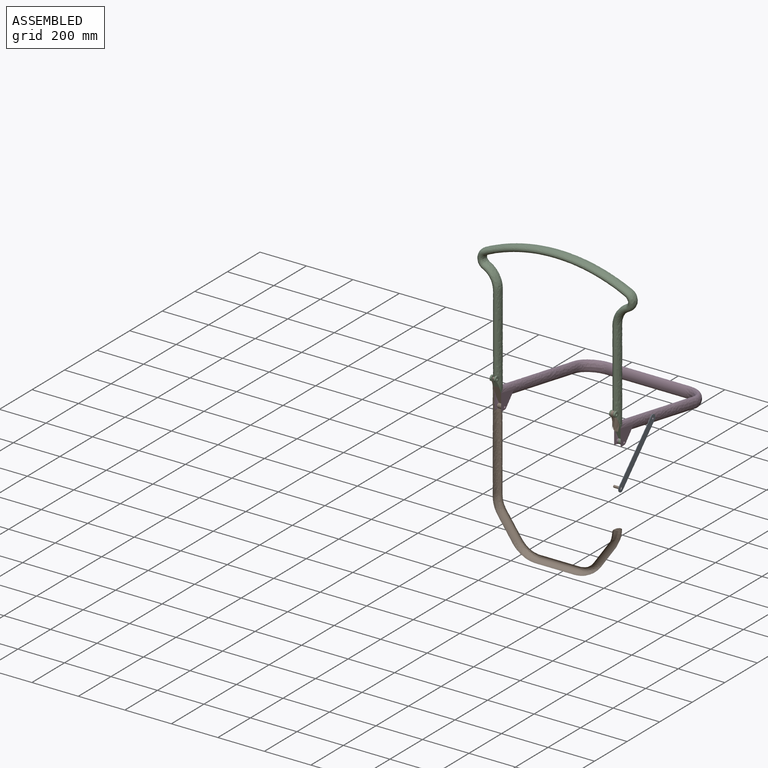
[diagram: assembled view]
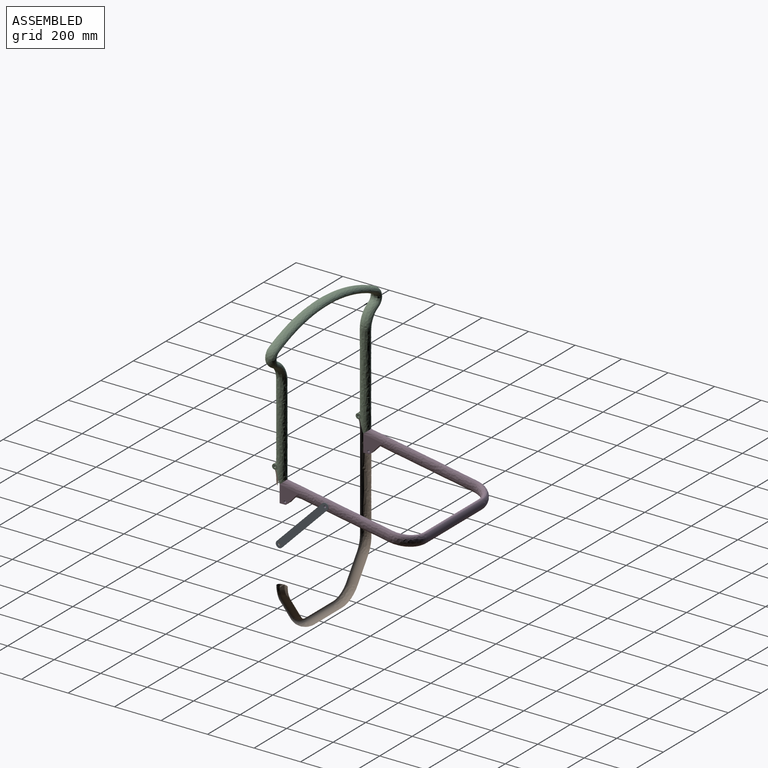
[diagram: assembled view, second angle]
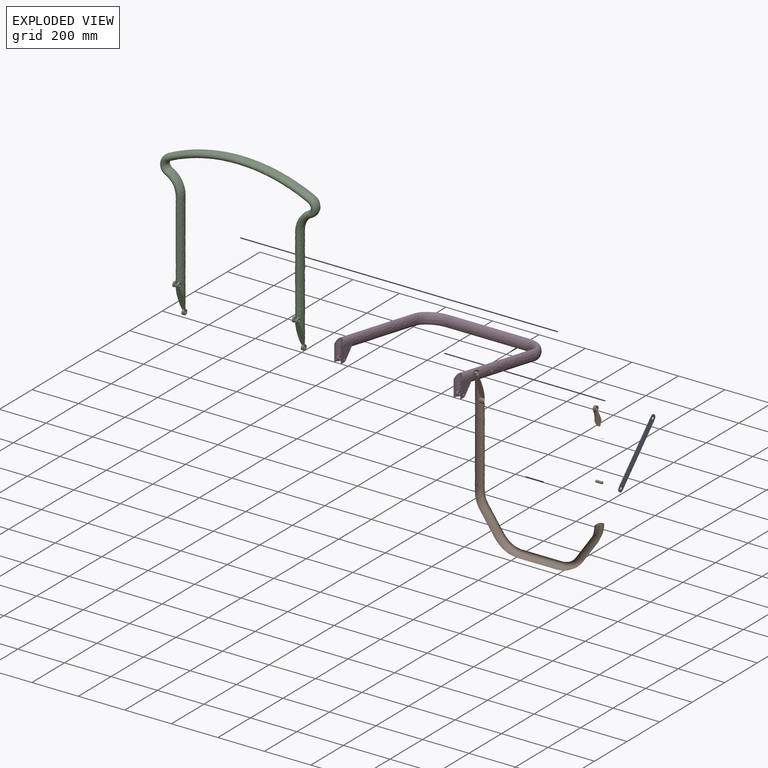
[diagram: exploded view]
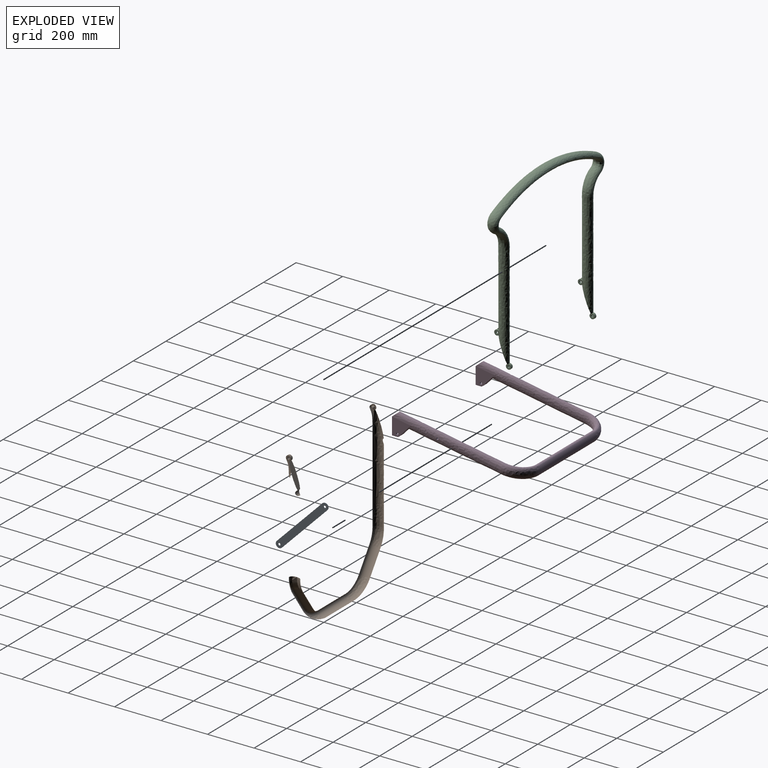
[diagram: exploded view, second angle]
ASSEMBLY  parts=4 mates=4
PART A: 8 faces, bbox 2x225.5x228.2 mm
  f0: cylinder r=15mm len=25.68mm, axis (-1,0,0), area 94.2mm2, adj f1,f5,f6,f7
  f1: plane 198.22x195.45mm, normal (0,-0.71,0.7), area 556.8mm2, adj f0,f2,f6,f7
  f2: cylinder r=15mm len=25.68mm, axis (-1,0,0), area 94.2mm2, adj f1,f5,f6,f7
  f3: cylinder r=5mm len=10mm, axis (-1,0,0), area 62.8mm2, adj f6,f7
  f4: cylinder r=5mm len=10mm, axis (-1,0,0), area 62.8mm2, adj f6,f7
  f5: plane 198.22x195.45mm, normal (0,0.71,-0.7), area 556.8mm2, adj f0,f2,f6,f7
  f6: plane 228.22x225.45mm, normal (1,0,0), area 8901.1mm2, adj f0,f1,f2,f3,f4,f5
  f7: plane 228.22x225.45mm, normal (-1,0,0), area 8901.1mm2, adj f0,f1,f2,f3,f4,f5
PART B: 33 faces, bbox 707.4x137.2x1113.4 mm
  f0: bspline ~44.86x27.56mm, area 0mm2, adj f1,f2
  f1: bspline ~79.58x70.95mm, area 7874.3mm2, adj f0,f2,f3
  f2: cylinder r=0.5mm len=27.99mm, axis (-1,0,0), area 87.9mm2, adj f0,f1
  f3: bspline ~123.57x109.85mm, area 12991.5mm2, adj f1,f4
  f4: bspline ~113.82x91.39mm, area 12397.9mm2, adj f3,f5
  f5: bspline ~82.08x56mm, area 9553.2mm2, adj f4,f6
  f6: bspline ~82.08x56mm, area 9553.2mm2, adj f5,f7
  f7: bspline ~113.82x91.39mm, area 12397.9mm2, adj f6,f8
  f8: bspline ~123.57x109.85mm, area 12991.5mm2, adj f7,f9
  f9: bspline ~79.58x70.95mm, area 7874.3mm2, adj f8,f10
  f10: bspline ~802.07x56mm, area 45290.1mm2, adj f9,f11,f12,f13,f14,f15
  f11: plane 113.47x44.55mm, normal (0,0.94,0.34), area 2676.6mm2, adj f10,f12,f14,f15,f16,f17,f18,f19
  f12: cylinder r=6mm len=57.05mm, axis (0,0,1), area 189.8mm2, adj f10,f11,f13,f16,f17
  f13: bspline ~109.17x59.45mm, area 669.3mm2, adj f10,f12,f14,f17,f18,f19
  f14: cylinder r=6mm len=57.05mm, axis (0,0,1), area 189.8mm2, adj f10,f11,f13,f16,f19
  f15: cylinder r=11.25mm len=24.25mm, axis (1,0,0), area 639.5mm2, adj f10,f11
  f16: cylinder r=5mm len=11.81mm, axis (-1,0,0), area 317.1mm2, adj f11,f12,f14,f17,f19
  f17: plane 37.97x23.99mm, normal (-1,0,0), area 331.2mm2, adj f11,f12,f13,f16,f18
  f18: cylinder r=11.26mm len=22.51mm, axis (-1,0,0), area 553.1mm2, adj f11,f13,f17,f19
  f19: plane 37.97x23.98mm, normal (1,0,0), area 331.2mm2, adj f11,f13,f14,f16,f18
  f20: bspline ~802.07x45mm, area 78.7mm2, adj f21
  f21: cylinder r=5mm len=28mm, axis (-1,0,0), area 879.6mm2, adj f20,f22
  f22: bspline ~802.07x45mm, area 78.7mm2, adj f21
  f23: bspline ~126.75x44.87mm, area 1607.5mm2, adj f24,f25,f26,f27,f28
  f24: cylinder r=11.25mm len=24.25mm, axis (-1,0,0), area 640.1mm2, adj f23,f25
  f25: plane 189.29x120.36mm, normal (0,0.94,0.34), area 2676.6mm2, adj f23,f24,f26,f28,f29,f30,f31,f32
  f26: cylinder r=6mm len=57.05mm, axis (0,0,1), area 189.8mm2, adj f23,f25,f27,f29,f32
  f27: bspline ~109.17x59.44mm, area 669.3mm2, adj f23,f26,f28,f30,f31,f32
  f28: cylinder r=6mm len=57.05mm, axis (0,0,1), area 189.8mm2, adj f23,f25,f27,f29,f30
  f29: cylinder r=5mm len=11.81mm, axis (1,0,0), area 317.1mm2, adj f25,f26,f28,f30,f32
  f30: plane 37.96x23.98mm, normal (-1,0,0), area 331.2mm2, adj f25,f27,f28,f29,f31
  f31: cylinder r=11.26mm len=22.51mm, axis (1,0,0), area 553.1mm2, adj f25,f27,f30,f32
  f32: plane 37.97x23.99mm, normal (1,0,0), area 331.2mm2, adj f25,f26,f27,f29,f31
PART C: 44 faces, bbox 740.7x67.9x1035.2 mm
  f0: cylinder r=11.25mm len=2.83mm, axis (-1,0,0), area 3.5mm2, adj f2,f3,f19
  f1: cylinder r=11.26mm len=22.51mm, axis (1,0,0), area 361.4mm2, adj f2,f9,f11,f14
  f2: bspline ~802.07x56mm, area 45999.8mm2, adj f0,f1,f3,f6,f7,f12,f17,f18
  f3: plane 108.74x39.81mm, normal (0,-0.94,-0.34), area 2675.3mm2, adj f0,f2,f10,f11,f12,f13,f14,f15
  f4: bspline ~318.51x122.99mm, area 36880.7mm2, adj f5,f26
  f5: bspline ~106.88x75.88mm, area 8178.8mm2, adj f4,f6
  f6: bspline ~103.88x89.59mm, area 11403.5mm2, adj f2,f5
  f7: cylinder r=11.26mm len=22.51mm, axis (1,0,0), area 361.4mm2, adj f2,f8,f10,f13
  f8: plane 22.51x22.51mm, normal (-1,0,0), area 319.5mm2, adj f7,f16
  f9: plane 22.51x22.51mm, normal (1,0,0), area 319.5mm2, adj f1,f15
  f10: bspline ~802.07x45mm, area 12.8mm2, adj f3,f7,f13,f16
  f11: bspline ~802.07x45mm, area 12.8mm2, adj f1,f3,f14,f15
  f12: cylinder r=11.26mm len=21.83mm, axis (1,0,0), area 306.9mm2, adj f2,f3,f13,f14
  f13: plane 22.51x22.51mm, normal (1,0,0), area 311.1mm2, adj f3,f7,f10,f12,f16
  f14: plane 22.51x22.51mm, normal (-1,0,0), area 311.1mm2, adj f1,f3,f11,f12,f15
  f15: cylinder r=5mm len=10mm, axis (1,0,0), area 235.6mm2, adj f3,f9,f11,f14
  f16: cylinder r=5mm len=10mm, axis (1,0,0), area 235.6mm2, adj f3,f8,f10,f13
  f17: cylinder r=11.25mm len=2.83mm, axis (-1,0,0), area 3.5mm2, adj f2,f3,f20
  f18: cylinder r=11.25mm len=22.5mm, axis (1,0,0), area 672.5mm2, adj f2,f3,f19,f20
  f19: plane 22.5x22.5mm, normal (-1,0,0), area 319.1mm2, adj f0,f18,f21
  f20: plane 22.5x22.5mm, normal (1,0,0), area 319.1mm2, adj f17,f18,f21
  f21: cylinder r=5mm len=10mm, axis (-1,0,0), area 314.2mm2, adj f19,f20
  f22: cylinder r=11.25mm len=2.83mm, axis (1,0,0), area 3.5mm2, adj f24,f25,f41
  f23: cylinder r=11.26mm len=22.51mm, axis (-1,0,0), area 361.4mm2, adj f24,f31,f33,f36
  f24: bspline ~802.07x56mm, area 45999.8mm2, adj f22,f23,f25,f28,f29,f34,f39,f40
  f25: plane 108.74x39.81mm, normal (0,-0.94,-0.34), area 2675.3mm2, adj f22,f24,f32,f33,f34,f35,f36,f37
  f26: bspline ~318.51x122.99mm, area 36880.7mm2, adj f4,f27
  f27: bspline ~106.88x75.88mm, area 8178.8mm2, adj f26,f28
  f28: bspline ~103.88x89.59mm, area 11403.5mm2, adj f24,f27
  f29: cylinder r=11.26mm len=22.51mm, axis (-1,0,0), area 361.5mm2, adj f24,f30,f32,f35
  f30: plane 22.51x22.51mm, normal (1,0,0), area 319.5mm2, adj f29,f38
  f31: plane 22.51x22.51mm, normal (-1,0,0), area 319.5mm2, adj f23,f37
  f32: bspline ~802.07x45mm, area 12.8mm2, adj f25,f29,f35,f38
  f33: bspline ~802.07x45mm, area 12.8mm2, adj f23,f25,f36,f37
  f34: cylinder r=11.26mm len=21.83mm, axis (-1,0,0), area 306.9mm2, adj f24,f25,f35,f36
  f35: plane 22.51x22.51mm, normal (-1,0,0), area 311.1mm2, adj f25,f29,f32,f34,f38
  f36: plane 22.51x22.51mm, normal (1,0,0), area 311.1mm2, adj f23,f25,f33,f34,f37
  f37: cylinder r=5mm len=10mm, axis (-1,0,0), area 235.6mm2, adj f25,f31,f33,f36
  f38: cylinder r=5mm len=10mm, axis (-1,0,0), area 235.6mm2, adj f25,f30,f32,f35
  f39: cylinder r=11.25mm len=2.83mm, axis (1,0,0), area 3.5mm2, adj f24,f25,f42
  f40: cylinder r=11.25mm len=22.5mm, axis (-1,0,0), area 672.5mm2, adj f24,f25,f41,f42
  f41: plane 22.5x22.5mm, normal (1,0,0), area 319.1mm2, adj f22,f40,f43
  f42: plane 22.5x22.5mm, normal (-1,0,0), area 319.1mm2, adj f39,f40,f43
  f43: cylinder r=5mm len=10mm, axis (1,0,0), area 314.2mm2, adj f41,f42
PART D: 43 faces, bbox 569.8x609x802.1 mm
  f0: cylinder r=11.25mm len=9mm, axis (1,0,0), area 84.3mm2, adj f5,f7,f8,f16
  f1: plane 22.5x14.01mm, normal (0,0,-1), area 67.6mm2, adj f6,f9,f12,f15
  f2: bspline ~477.04x128.01mm, area 51104.3mm2, adj f3,f5,f8,f9,f12,f40
  f3: bspline ~121.48x115.24mm, area 16186.8mm2, adj f2,f4,f41
  f4: bspline ~169.67x63.14mm, area 20043mm2, adj f3,f24
  f5: plane 55.12x50.1mm, normal (0,0.74,-0.67), area 1487.4mm2, adj f0,f2,f6,f8,f9,f11
  f6: cylinder r=11.25mm len=9mm, axis (1,0,0), area 84.3mm2, adj f1,f5,f9,f17
  f7: plane 22.5x14.01mm, normal (0,0,-1), area 67.6mm2, adj f0,f8,f10,f12
  f8: plane 80.93x73.07mm, normal (-1,0,0), area 3682.6mm2, adj f0,f2,f5,f7,f12,f19
  f9: plane 80.93x73.07mm, normal (1,0,0), area 3682.6mm2, adj f1,f2,f5,f6,f12,f18
  f10: cylinder r=11.25mm len=5mm, axis (1,0,0), area 3.7mm2, adj f7,f12,f16
  f11: cylinder r=11.25mm len=18.82mm, axis (1,0,0), area 264.6mm2, adj f5,f12,f16,f17
  f12: bspline ~802.07x56mm, area 4244.4mm2, adj f1,f2,f7,f8,f9,f10,f11,f13
  f13: cylinder r=11.25mm len=22.3mm, axis (-1,0,0), area 169.2mm2, adj f12,f16
  f14: cylinder r=11.25mm len=22.3mm, axis (-1,0,0), area 169.2mm2, adj f12,f17
  f15: cylinder r=11.25mm len=5mm, axis (1,0,0), area 3.7mm2, adj f1,f12,f17
  f16: plane 22.5x22.5mm, normal (1,0,0), area 319.1mm2, adj f0,f10,f11,f13,f19
  f17: plane 22.5x22.5mm, normal (-1,0,0), area 319.1mm2, adj f6,f11,f14,f15,f18
  f18: cylinder r=5mm len=10mm, axis (-1,0,0), area 282.7mm2, adj f9,f17
  f19: cylinder r=5mm len=10mm, axis (-1,0,0), area 282.7mm2, adj f8,f16
  f20: cylinder r=11.25mm len=9mm, axis (-1,0,0), area 84.3mm2, adj f25,f27,f28,f36
  f21: plane 22.5x14.01mm, normal (0,0,-1), area 67.6mm2, adj f26,f29,f32,f35
  f22: bspline ~477.04x128.01mm, area 51259.9mm2, adj f23,f25,f28,f29,f32
  f23: bspline ~121.48x115.24mm, area 16188.3mm2, adj f22,f24
  f24: bspline ~169.67x63.14mm, area 20043mm2, adj f4,f23
  f25: plane 55.12x50.1mm, normal (0,0.74,-0.67), area 1487.4mm2, adj f20,f22,f26,f28,f29,f31
  f26: cylinder r=11.25mm len=9mm, axis (-1,0,0), area 84.3mm2, adj f21,f25,f29,f37
  f27: plane 22.5x14.01mm, normal (0,0,-1), area 67.6mm2, adj f20,f28,f30,f32
  f28: plane 80.93x73.07mm, normal (1,0,0), area 3682.6mm2, adj f20,f22,f25,f27,f32,f39
  f29: plane 80.93x73.07mm, normal (-1,0,0), area 3682.6mm2, adj f21,f22,f25,f26,f32,f38
  f30: cylinder r=11.25mm len=5mm, axis (-1,0,0), area 3.7mm2, adj f27,f32,f36
  f31: cylinder r=11.25mm len=18.82mm, axis (-1,0,0), area 264.6mm2, adj f25,f32,f36,f37
  f32: bspline ~802.07x56mm, area 4244.4mm2, adj f21,f22,f27,f28,f29,f30,f31,f33
  f33: cylinder r=11.25mm len=22.3mm, axis (1,0,0), area 169.2mm2, adj f32,f36
  f34: cylinder r=11.25mm len=22.3mm, axis (1,0,0), area 169.2mm2, adj f32,f37
  f35: cylinder r=11.25mm len=5mm, axis (-1,0,0), area 3.7mm2, adj f21,f32,f37
  f36: plane 22.5x22.5mm, normal (-1,0,0), area 319.1mm2, adj f20,f30,f31,f33,f39
  f37: plane 22.5x22.5mm, normal (1,0,0), area 319.1mm2, adj f26,f31,f34,f35,f38
  f38: cylinder r=5mm len=10mm, axis (1,0,0), area 282.7mm2, adj f29,f37
  f39: cylinder r=5mm len=10mm, axis (1,0,0), area 282.7mm2, adj f28,f36
  f40: cylinder r=5mm len=27.35mm, axis (-1,0,0), area 859.3mm2, adj f2
  f41: cylinder r=0.5mm len=1.97mm, axis (-1,0,0), area 3.5mm2, adj f3,f42
  f42: plane 1x1mm, normal (1,0,0), area 0.8mm2, adj f41
PLACE A rot(axis=(-1,0,0),0deg) t=(15,0.14,0)mm
PLACE B at identity fixed
PLACE C rot(axis=(1,0,0),0deg) t=(0.98,0.1,-0.22)mm
PLACE D rot(axis=(1,0,0),0deg) t=(0.98,0.1,-0.22)mm
MATE revolute B.f29 <-> C.f14  axis (1,0,0) through (262.89,-22.5,61.82)mm
MATE revolute B.f21 <-> A.f3  axis (-1,0,0) through (256.92,0,-232.69)mm
MATE revolute C.f43 <-> D.f38  axis (-1,0,0) through (-260.94,22.63,-62.03)mm
MATE cylindrical D.f40 <-> A.f2  axis (-1,0,0) through (272.06,195.57,-34.58)mm
